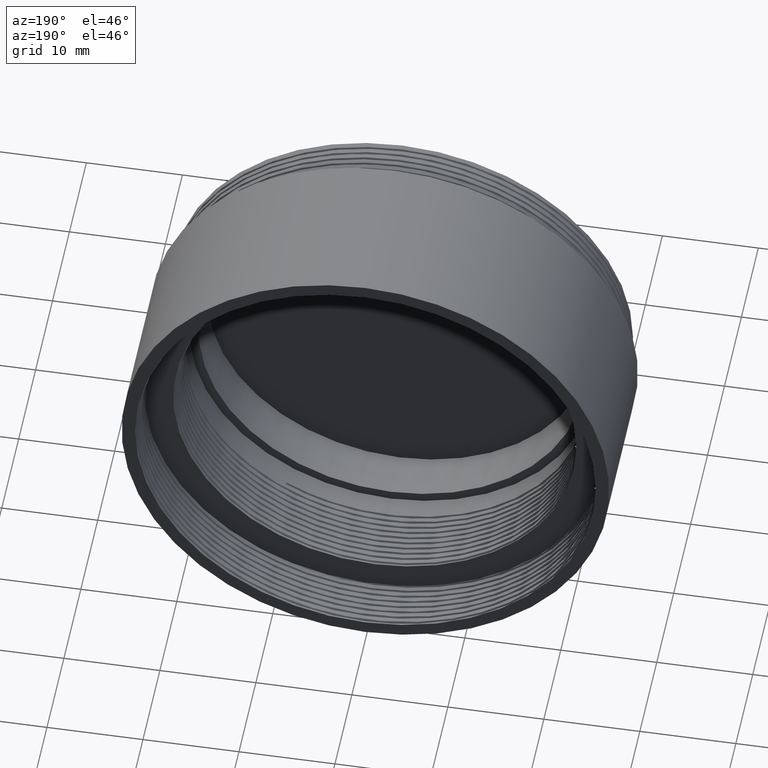
[diagram: clean part render]
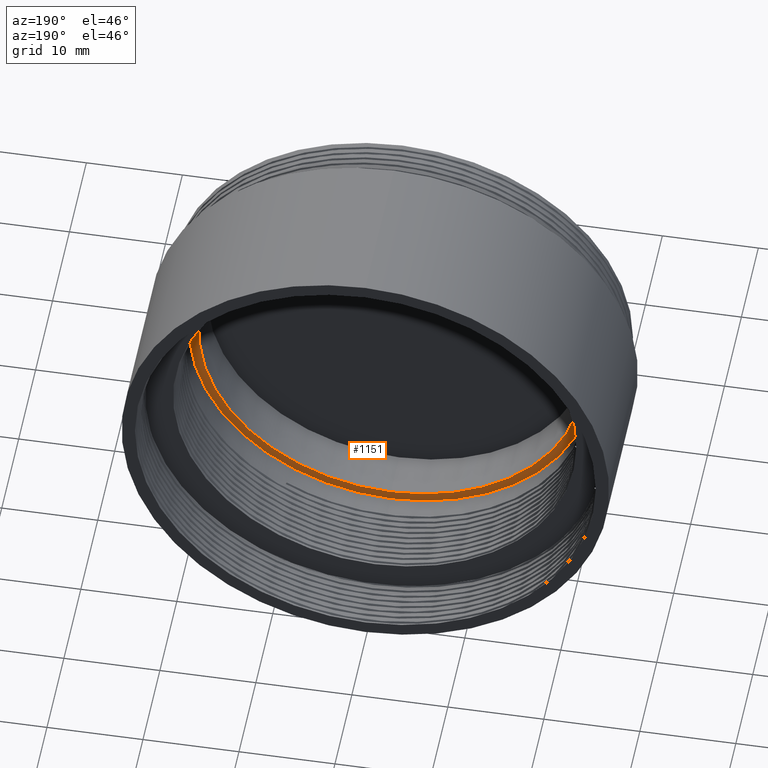
[diagram: same view with one face highlighted and labeled with its STEP entity id]
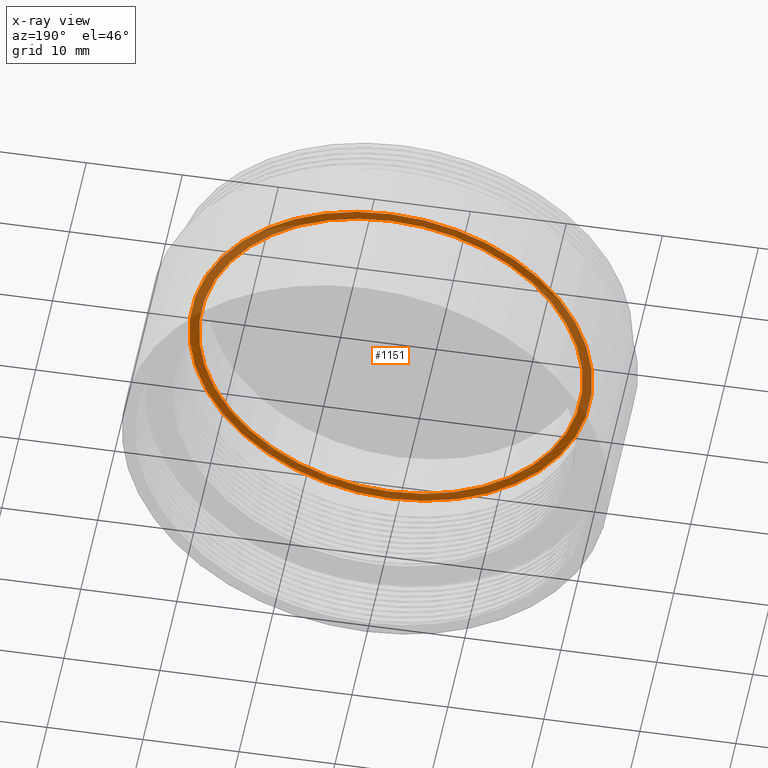
[diagram: x-ray of the same camera — body ghosted, the highlighted face saturated]
A machine part, auxiliary view. The second image highlights one B-rep face of the part: STEP entity #1151.
The next image is the same camera in x-ray: the body ghosted, the highlighted face saturated — about 33% of this face is hidden behind the body in this view.
In plain terms, the highlighted planar face has unit normal (0, 1, 0).
Its self-contained STEP definition (entity closure, byte-faithful):
#39 = ORIENTED_EDGE ( 'NONE', *, *, #3501, .F. ) ;
#70 = VERTEX_POINT ( 'NONE', #5796 ) ;
#344 = AXIS2_PLACEMENT_3D ( 'NONE', #2206, #4419, #6633 ) ;
#380 = EDGE_CURVE ( 'NONE', #6822, #2058, #1979, .T. ) ;
#1037 = AXIS2_PLACEMENT_3D ( 'NONE', #6856, #4103, #5220 ) ;
#1151 = ADVANCED_FACE ( 'NONE', ( #1448, #2428 ), #4641, .T. ) ;
#1252 = CARTESIAN_POINT ( 'NONE',  ( 0.000000000000000000, 7.000000000000000000, 0.000000000000000000 ) ) ;
#1448 = FACE_BOUND ( 'NONE', #2904, .T. ) ;
#1541 = EDGE_LOOP ( 'NONE', ( #5693, #39 ) ) ;
#1773 = DIRECTION ( 'NONE',  ( 0.000000000000000000, 0.000000000000000000, -1.000000000000000000 ) ) ;
#1979 = CIRCLE ( 'NONE', #3952, 20.00000000000000000 ) ;
#2000 = ORIENTED_EDGE ( 'NONE', *, *, #380, .T. ) ;
#2058 = VERTEX_POINT ( 'NONE', #6295 ) ;
#2206 = CARTESIAN_POINT ( 'NONE',  ( 0.000000000000000000, 7.000000000000000000, 0.000000000000000000 ) ) ;
#2314 = CARTESIAN_POINT ( 'NONE',  ( 0.000000000000000000, 7.000000000000000000, 0.000000000000000000 ) ) ;
#2428 = FACE_OUTER_BOUND ( 'NONE', #1541, .T. ) ;
#2668 = CIRCLE ( 'NONE', #344, 21.00000000000000000 ) ;
#2904 = EDGE_LOOP ( 'NONE', ( #2000, #5063 ) ) ;
#3338 = VERTEX_POINT ( 'NONE', #6778 ) ;
#3367 = EDGE_CURVE ( 'NONE', #3338, #70, #4522, .T. ) ;
#3501 = EDGE_CURVE ( 'NONE', #70, #3338, #2668, .T. ) ;
#3541 = DIRECTION ( 'NONE',  ( 0.000000000000000000, 0.000000000000000000, -1.000000000000000000 ) ) ;
#3952 = AXIS2_PLACEMENT_3D ( 'NONE', #6875, #6297, #3541 ) ;
#4103 = DIRECTION ( 'NONE',  ( 0.000000000000000000, 1.000000000000000000, 0.000000000000000000 ) ) ;
#4419 = DIRECTION ( 'NONE',  ( -0.000000000000000000, -1.000000000000000000, -0.000000000000000000 ) ) ;
#4522 = CIRCLE ( 'NONE', #6491, 21.00000000000000000 ) ;
#4616 = DIRECTION ( 'NONE',  ( -0.000000000000000000, -1.000000000000000000, -0.000000000000000000 ) ) ;
#4641 = PLANE ( 'NONE',  #1037 ) ;
#4708 = EDGE_CURVE ( 'NONE', #2058, #6822, #5212, .T. ) ;
#5063 = ORIENTED_EDGE ( 'NONE', *, *, #4708, .T. ) ;
#5212 = CIRCLE ( 'NONE', #6265, 20.00000000000000000 ) ;
#5220 = DIRECTION ( 'NONE',  ( 0.000000000000000000, -0.000000000000000000, 1.000000000000000000 ) ) ;
#5646 = DIRECTION ( 'NONE',  ( -0.000000000000000000, -1.000000000000000000, -0.000000000000000000 ) ) ;
#5687 = CARTESIAN_POINT ( 'NONE',  ( 0.000000000000000000, 7.000000000000000000, -20.00000000000000000 ) ) ;
#5693 = ORIENTED_EDGE ( 'NONE', *, *, #3367, .F. ) ;
#5796 = CARTESIAN_POINT ( 'NONE',  ( 2.571758278209441661E-15, 7.000000000000000000, 21.00000000000000000 ) ) ;
#6265 = AXIS2_PLACEMENT_3D ( 'NONE', #1252, #4616, #6832 ) ;
#6295 = CARTESIAN_POINT ( 'NONE',  ( 2.449293598294706513E-15, 7.000000000000000000, 20.00000000000000000 ) ) ;
#6297 = DIRECTION ( 'NONE',  ( -0.000000000000000000, -1.000000000000000000, -0.000000000000000000 ) ) ;
#6491 = AXIS2_PLACEMENT_3D ( 'NONE', #2314, #5646, #1773 ) ;
#6633 = DIRECTION ( 'NONE',  ( 0.000000000000000000, 0.000000000000000000, -1.000000000000000000 ) ) ;
#6778 = CARTESIAN_POINT ( 'NONE',  ( 0.000000000000000000, 7.000000000000000000, -21.00000000000000000 ) ) ;
#6822 = VERTEX_POINT ( 'NONE', #5687 ) ;
#6832 = DIRECTION ( 'NONE',  ( 0.000000000000000000, 0.000000000000000000, -1.000000000000000000 ) ) ;
#6856 = CARTESIAN_POINT ( 'NONE',  ( 20.00000000000000000, 7.000000000000000000, 0.000000000000000000 ) ) ;
#6875 = CARTESIAN_POINT ( 'NONE',  ( 0.000000000000000000, 7.000000000000000000, 0.000000000000000000 ) ) ;